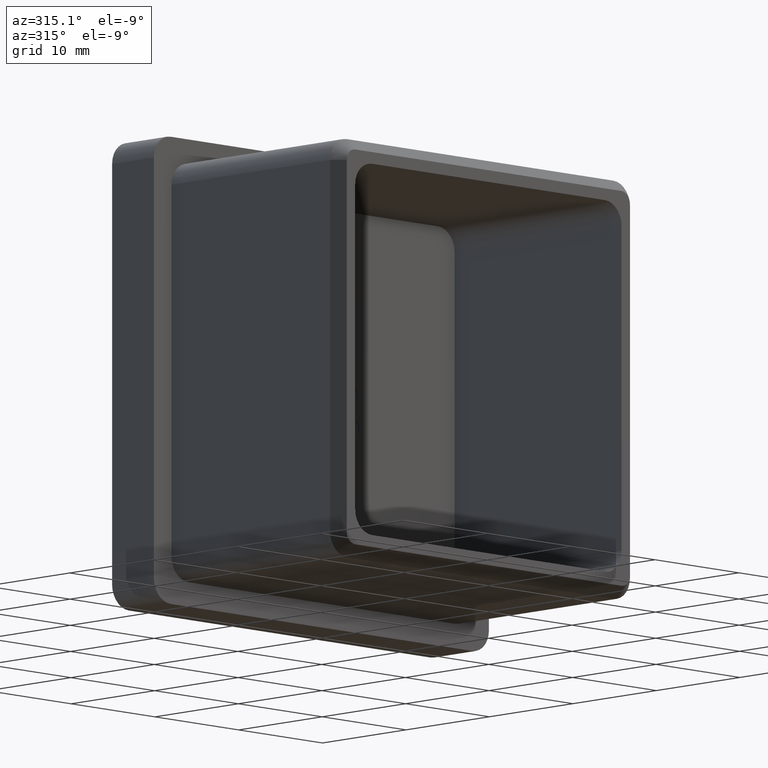
[diagram: clean part render]
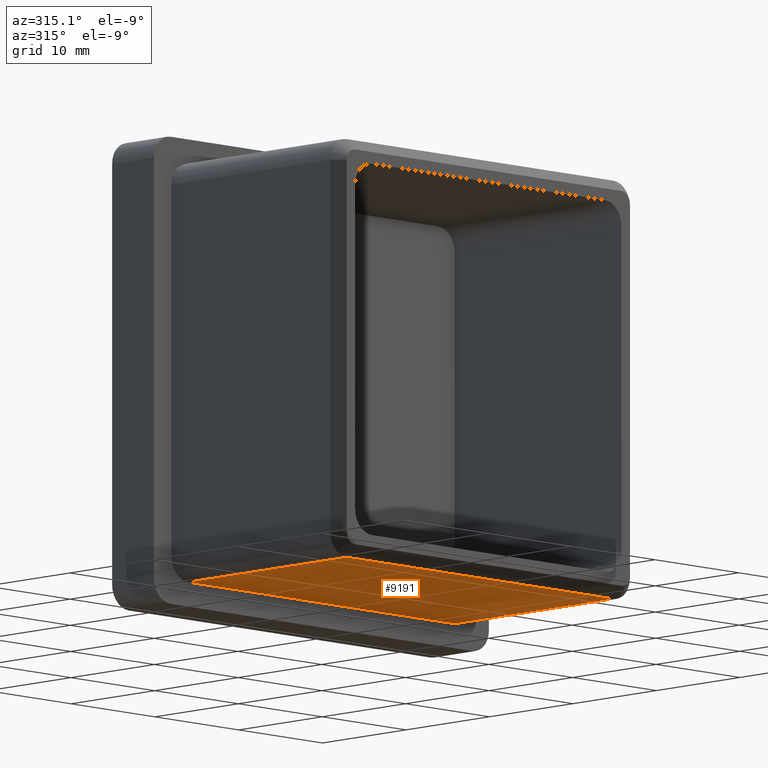
[diagram: same view with one face highlighted and labeled with its STEP entity id]
A machine part, auxiliary view. The second image highlights one B-rep face of the part: STEP entity #9191.
In plain terms, the highlighted planar face has unit normal (-0, 0, 1).
Its self-contained STEP definition (entity closure, byte-faithful):
#397 = DIRECTION ( 'NONE',  ( -0.0000000000000000000, -1.000000000000000000, -0.0000000000000000000 ) ) ;
#530 = CARTESIAN_POINT ( 'NONE',  ( 15.89999999999998400, 0.0000000000000000000, -17.89999999999999900 ) ) ;
#707 = CARTESIAN_POINT ( 'NONE',  ( -15.89999999999999700, 0.0000000000000000000, -17.89999999999999900 ) ) ;
#1243 = EDGE_CURVE ( 'NONE', #4071, #14270, #9152, .T. ) ;
#1738 = DIRECTION ( 'NONE',  ( 1.000000000000000000, 0.0000000000000000000, 0.0000000000000000000 ) ) ;
#1989 = EDGE_LOOP ( 'NONE', ( #3978, #3024, #8892, #2769 ) ) ;
#1999 = EDGE_CURVE ( 'NONE', #6299, #8749, #6589, .T. ) ;
#2769 = ORIENTED_EDGE ( 'NONE', *, *, #6151, .T. ) ;
#2827 = LINE ( 'NONE', #11588, #7575 ) ;
#3024 = ORIENTED_EDGE ( 'NONE', *, *, #8886, .T. ) ;
#3978 = ORIENTED_EDGE ( 'NONE', *, *, #1243, .T. ) ;
#4071 = VERTEX_POINT ( 'NONE', #530 ) ;
#4614 = AXIS2_PLACEMENT_3D ( 'NONE', #11563, #13835, #6426 ) ;
#4848 = CARTESIAN_POINT ( 'NONE',  ( -15.89999999999999700, -20.00000000000000000, -17.89999999999999900 ) ) ;
#4853 = FACE_OUTER_BOUND ( 'NONE', #1989, .T. ) ;
#5239 = CARTESIAN_POINT ( 'NONE',  ( -15.89999999999999700, -18.99999999999998600, -17.89999999999999900 ) ) ;
#5826 = VECTOR ( 'NONE', #397, 1000.000000000000000 ) ;
#6151 = EDGE_CURVE ( 'NONE', #8749, #4071, #2827, .T. ) ;
#6299 = VERTEX_POINT ( 'NONE', #8594 ) ;
#6385 = DIRECTION ( 'NONE',  ( -1.000000000000000000, 0.0000000000000000000, -0.0000000000000000000 ) ) ;
#6426 = DIRECTION ( 'NONE',  ( 1.000000000000000000, 0.0000000000000000000, 0.0000000000000000000 ) ) ;
#6589 = LINE ( 'NONE', #4848, #10789 ) ;
#7575 = VECTOR ( 'NONE', #1738, 1000.000000000000000 ) ;
#7680 = LINE ( 'NONE', #5239, #8729 ) ;
#8594 = CARTESIAN_POINT ( 'NONE',  ( -15.89999999999999700, -18.99999999999998600, -17.89999999999999900 ) ) ;
#8729 = VECTOR ( 'NONE', #6385, 1000.000000000000000 ) ;
#8749 = VERTEX_POINT ( 'NONE', #707 ) ;
#8886 = EDGE_CURVE ( 'NONE', #14270, #6299, #7680, .T. ) ;
#8892 = ORIENTED_EDGE ( 'NONE', *, *, #1999, .T. ) ;
#9152 = LINE ( 'NONE', #9213, #5826 ) ;
#9191 = ADVANCED_FACE ( 'NONE', ( #4853 ), #10439, .F. ) ;
#9213 = CARTESIAN_POINT ( 'NONE',  ( 15.89999999999999700, -20.00000000000000000, -17.89999999999999900 ) ) ;
#9407 = DIRECTION ( 'NONE',  ( 0.0000000000000000000, 1.000000000000000000, -0.0000000000000000000 ) ) ;
#10439 = PLANE ( 'NONE',  #4614 ) ;
#10789 = VECTOR ( 'NONE', #9407, 1000.000000000000000 ) ;
#11485 = CARTESIAN_POINT ( 'NONE',  ( 15.89999999999999700, -18.99999999999998600, -17.89999999999999900 ) ) ;
#11563 = CARTESIAN_POINT ( 'NONE',  ( -17.89999999999999900, -20.00000000000000000, -17.89999999999999900 ) ) ;
#11588 = CARTESIAN_POINT ( 'NONE',  ( -17.89999999999999900, -0.0000000000000000000, -17.89999999999999900 ) ) ;
#13835 = DIRECTION ( 'NONE',  ( -0.0000000000000000000, 0.0000000000000000000, 1.000000000000000000 ) ) ;
#14270 = VERTEX_POINT ( 'NONE', #11485 ) ;